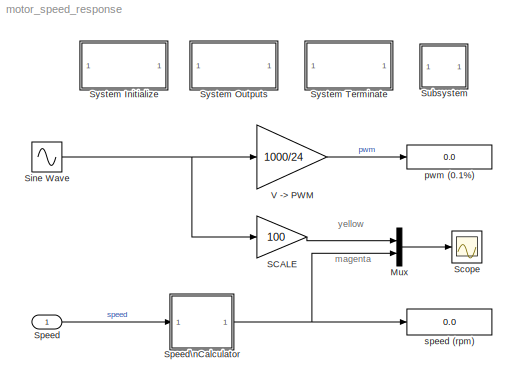
MODEL motor_speed_response
KIND model
BLOCK [Mux] Mux
  DisplayOption = bar
  Inputs = 2
  Ports = [2, 1]
  SID = 2
BLOCK [Gain] SCALE
  Gain = 100
  OutDataType = sfix(16)
  OutDataTypeMode = Inherit via internal rule
  OutDataTypeStr = Inherit: Inherit via internal rule
  OutScaling = 2^0
  ParamDataTypeStr = Inherit: Inherit via internal rule
  ParameterDataType = sfix(16)
  ParameterDataTypeMode = Inherit via internal rule
  ParameterScaling = 2^0
  SID = 3
  SaturateOnIntegerOverflow = off
BLOCK [Scope] Scope
  DataFormat = Array
  Floating = off
  LimitDataPoints = off
  NumInputPorts = 1
  Ports = [1]
  SID = 4
  SampleTime = 0
  SaveToWorkspace = on
  TimeRange = 100
  YMax = 600
  YMin = -800
BLOCK [Sin] Sine Wave
  Amplitude = 7.2
  Bias = 0
  Frequency = 1
  Offset = 0
  Phase = 0
  Ports = [0, 1]
  SID = 5
  SampleTime = 0
  Samples = 10
BLOCK [Inport] Speed
  IconDisplay = Port number
  OutDataType = sfix(16)
  OutScaling = 2^0
  SID = 1
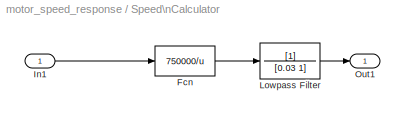
BLOCK [SubSystem] Speed\nCalculator
  FunctionWithSeparateData = off
  MaskHideContents = off
  MinAlgLoopOccurrences = off
  Opaque = off
  Ports = [1, 1]
  PropExecContextOutsideSubsystem = off
  RTWSystemCode = Auto
  RequestExecContextInheritance = off
  SID = 6
BLOCK [Fcn] Speed\nCalculator/Fcn
  Expr = 750000/u
  SID = 8
BLOCK [Inport] Speed\nCalculator/In1
  IconDisplay = Port number
  OutDataType = sfix(16)
  OutScaling = 2^0
  SID = 7
BLOCK [TransferFcn] Speed\nCalculator/Lowpass Filter
  Denominator = [0.03 1]
  SID = 9
BLOCK [Outport] Speed\nCalculator/Out1
  IconDisplay = Port number
  OutDataType = sfix(16)
  OutScaling = 2^0
  SID = 10
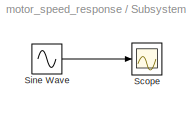
BLOCK [SubSystem] Subsystem
  FunctionWithSeparateData = off
  MaskHideContents = off
  MinAlgLoopOccurrences = off
  Opaque = off
  Ports = []
  PropExecContextOutsideSubsystem = off
  RTWSystemCode = Auto
  RequestExecContextInheritance = off
  SID = 17
  TreatAsAtomicUnit = on
BLOCK [Scope] Subsystem/Scope
  DataFormat = StructureWithTime
  Floating = off
  NumInputPorts = 1
  Ports = [1]
  SID = 18
  SampleTime = 0
  SaveName = ScopeData1
BLOCK [Sin] Subsystem/Sine Wave
  Amplitude = 1
  Bias = 0
  Frequency = 1
  Offset = 0
  Phase = 0
  Ports = [0, 1]
  SID = 19
  SampleTime = 0
  Samples = 10
BLOCK [SubSystem] System Initialize
  CopyFcn = cccopyfcn(gcb)
  FunctionWithSeparateData = off
  MaskDescription = Add code to a systems Initialize function
  MaskDisplay = disp('System\\nInitialize');
  MaskEnableString = off
  MaskHelp = This block contains text fields to insert custom user code sections at the declaration, execution and exit sections of the systems initialize function.  By placing this block inside a subsytem, the custom user code will appear in that subsystems function.
  MaskHideContents = off
  MaskIconFrame = on
  MaskIconOpaque = on
  MaskIconRotate = none
  MaskIconUnits = autoscale
  MaskPortRotate = default
  MaskPromptString = Mask Parameter 1:
  MaskStyleString = edit
  MaskToolTipString = on
  MaskTunableValueString = on
  MaskType = System Initialize
  MaskValueString = 0
  MaskVariables = ShowInLibBrowser=@1;
  MaskVisibilityString = off
  MinAlgLoopOccurrences = off
  Opaque = off
  OpenFcn = ccopenfcn('System Initialize Function')
  Ports = []
  PropExecContextOutsideSubsystem = off
  RTWSystemCode = Auto
  RequestExecContextInheritance = off
  SID = 11
BLOCK [SubSystem] System Outputs
  CopyFcn = cccopyfcn(gcb)
  FunctionWithSeparateData = off
  MaskDescription = Add code to a systems Outputs function
  MaskDisplay = disp('System\\nOutputs');
  MaskEnableString = off
  MaskHelp = This block contains text fields to insert custom user code sections at the declaration, execution and exit sections of the systems outputs function.  By placing this block inside a subsytem, the custom user code will appear in that subsystems function.
  MaskHideContents = off
  MaskIconFrame = on
  MaskIconOpaque = on
  MaskIconRotate = none
  MaskIconUnits = autoscale
  MaskPortRotate = default
  MaskPromptString = Mask Parameter 1:
  MaskStyleString = edit
  MaskToolTipString = on
  MaskTunableValueString = on
  MaskType = System Outputs
  MaskValueString = 0
  MaskVariables = ShowInLibBrowser=@1;
  MaskVisibilityString = off
  MinAlgLoopOccurrences = off
  Opaque = off
  OpenFcn = ccopenfcn('System Outputs Function')
  Ports = []
  PropExecContextOutsideSubsystem = off
  RTWSystemCode = Auto
  RequestExecContextInheritance = off
  SID = 12
BLOCK [SubSystem] System Terminate
  CopyFcn = cccopyfcn(gcb)
  FunctionWithSeparateData = off
  MaskDescription = Add code to a systems Terminate function
  MaskDisplay = disp('System\\nTerminate');
  MaskEnableString = off
  MaskHelp = This block contains text fields to insert custom user code sections at the declaration, execution and exit sections of the systems terminate function.  By placing this block inside a subsytem, the custom user code will appear in that subsystems function.
  MaskHideContents = off
  MaskIconFrame = on
  MaskIconOpaque = on
  MaskIconRotate = none
  MaskIconUnits = autoscale
  MaskPortRotate = default
  MaskPromptString = Mask Parameter 1:
  MaskStyleString = edit
  MaskToolTipString = on
  MaskTunableValueString = on
  MaskType = System Terminate
  MaskValueString = 0
  MaskVariables = ShowInLibBrowser=@1;
  MaskVisibilityString = off
  MinAlgLoopOccurrences = off
  Opaque = off
  OpenFcn = ccopenfcn('System Terminate Function')
  Ports = []
  PropExecContextOutsideSubsystem = off
  RTWSystemCode = Auto
  RequestExecContextInheritance = off
  SID = 13
BLOCK [Gain] V -> PWM
  Gain = 1000/24
  OutDataType = sfix(16)
  OutDataTypeMode = Inherit via internal rule
  OutDataTypeStr = Inherit: Inherit via internal rule
  OutScaling = 2^0
  ParameterDataType = sfix(16)
  ParameterScaling = 2^0
  SID = 14
  SaturateOnIntegerOverflow = off
BLOCK [Display] pwm (0.1%)
  Decimation = 1
  Lockdown = off
  Ports = [1]
  SID = 15
BLOCK [Display] speed (rpm)
  Decimation = 1
  Lockdown = off
  Ports = [1]
  SID = 16
ANNOTATION (root): magenta
ANNOTATION (root): yellow
LINE Mux:1 -> Scope:1
LINE SCALE:1 -> Mux:1
NET Sine Wave:1 -> SCALE:1, V -> PWM:1
LINE Speed:1 -> Speed\nCalculator:1
LINE Speed\nCalculator/Fcn:1 -> Speed\nCalculator/Lowpass Filter:1
LINE Speed\nCalculator/In1:1 -> Speed\nCalculator/Fcn:1
LINE Speed\nCalculator/Lowpass Filter:1 -> Speed\nCalculator/Out1:1
NET Speed\nCalculator:1 -> Mux:2, speed (rpm):1
LINE Subsystem/Sine Wave:1 -> Subsystem/Scope:1
LINE V -> PWM:1 -> pwm (0.1%):1
note: NET lines group one-source signal fan-out (src -> all destinations, sorted); 1:1 wires keep LINE
